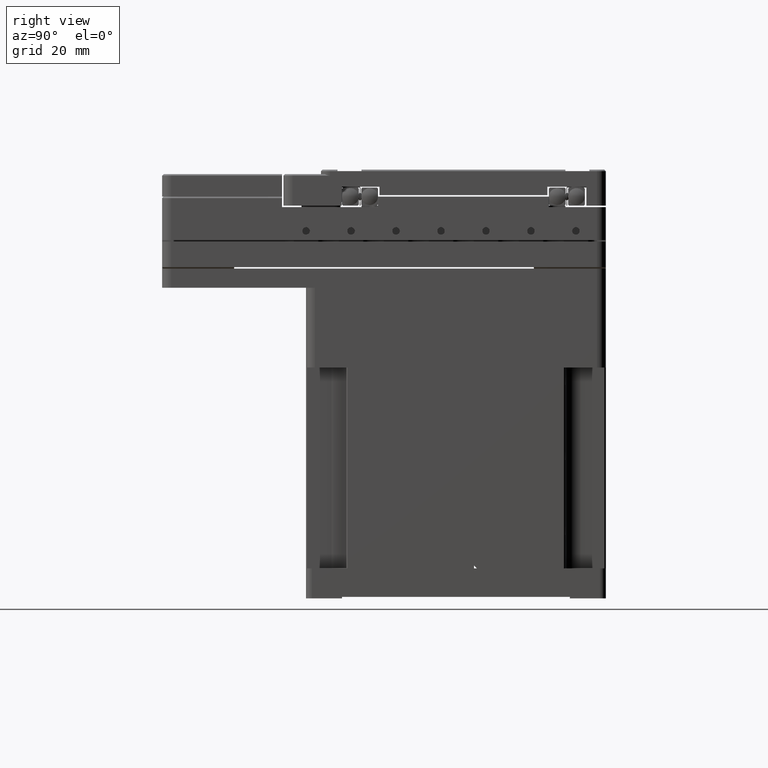
[diagram: clean part render]
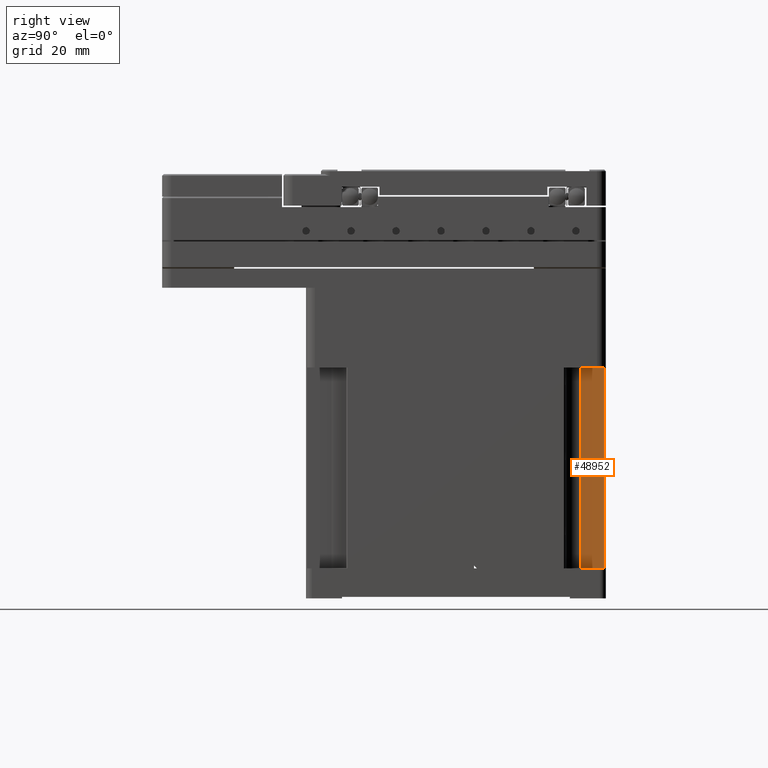
[diagram: same view with one face highlighted and labeled with its STEP entity id]
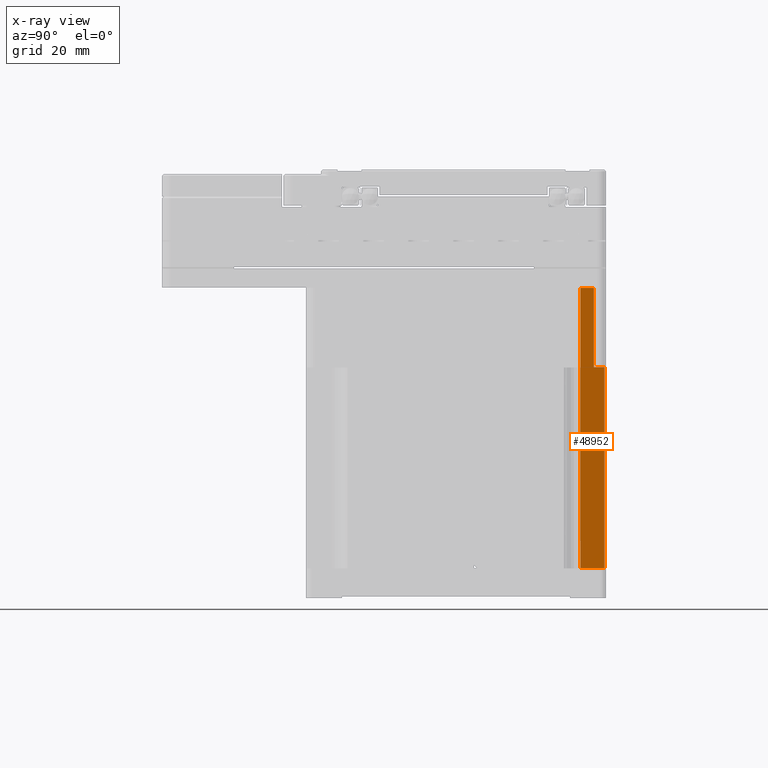
[diagram: x-ray of the same camera — body ghosted, the highlighted face saturated]
A machine part, right view. The second image highlights one B-rep face of the part: STEP entity #48952.
The next image is the same camera in x-ray: the body ghosted, the highlighted face saturated — about 0% of this face is hidden behind the body in this view.
In plain terms, the highlighted planar face has unit normal (-1, 0, 0).
Its self-contained STEP definition (entity closure, byte-faithful):
#601 = EDGE_CURVE ( 'NONE', #5150, #62597, #57172, .T. ) ;
#3567 = CARTESIAN_POINT ( 'NONE',  ( 36.49999999999999289, 46.00000000000000000, 202.7520022699813182 ) ) ;
#5150 = VERTEX_POINT ( 'NONE', #78508 ) ;
#5713 = LINE ( 'NONE', #56951, #57765 ) ;
#9070 = VERTEX_POINT ( 'NONE', #19261 ) ;
#10913 = DIRECTION ( 'NONE',  ( 0.000000000000000000, 0.000000000000000000, 1.000000000000000000 ) ) ;
#12698 = CARTESIAN_POINT ( 'NONE',  ( 36.49999999999999289, 49.50000000000000711, 66.99999999999988631 ) ) ;
#15832 = CARTESIAN_POINT ( 'NONE',  ( 36.49999999999999289, 0.000000000000000000, 67.00000000000000000 ) ) ;
#16410 = LINE ( 'NONE', #23481, #55803 ) ;
#17104 = ORIENTED_EDGE ( 'NONE', *, *, #55944, .F. ) ;
#17217 = DIRECTION ( 'NONE',  ( -0.000000000000000000, -1.000000000000000000, -0.000000000000000000 ) ) ;
#18878 = VERTEX_POINT ( 'NONE', #61968 ) ;
#19261 = CARTESIAN_POINT ( 'NONE',  ( 36.49999999999999289, 41.50000000000000711, 0.000000000000000000 ) ) ;
#21328 = VERTEX_POINT ( 'NONE', #38408 ) ;
#21857 = LINE ( 'NONE', #35948, #76413 ) ;
#23481 = CARTESIAN_POINT ( 'NONE',  ( 36.49999999999999289, 36.50000000000001421, 93.50000000000000000 ) ) ;
#23588 = VECTOR ( 'NONE', #45432, 1000.000000000000000 ) ;
#24016 = ORIENTED_EDGE ( 'NONE', *, *, #40272, .T. ) ;
#24431 = EDGE_CURVE ( 'NONE', #9070, #70181, #5713, .T. ) ;
#35948 = CARTESIAN_POINT ( 'NONE',  ( 36.49999999999999289, 0.000000000000000000, 0.000000000000000000 ) ) ;
#36005 = CARTESIAN_POINT ( 'NONE',  ( 36.49999999999999289, 49.50000000000000711, 202.7520022699813182 ) ) ;
#36208 = VECTOR ( 'NONE', #64228, 1000.000000000000000 ) ;
#36420 = DIRECTION ( 'NONE',  ( -0.000000000000000000, 1.000000000000000000, 0.000000000000000000 ) ) ;
#38408 = CARTESIAN_POINT ( 'NONE',  ( 36.49999999999999289, 46.00000000000000000, 66.99999999999997158 ) ) ;
#38836 = LINE ( 'NONE', #3567, #23588 ) ;
#39585 = ORIENTED_EDGE ( 'NONE', *, *, #601, .T. ) ;
#40102 = EDGE_CURVE ( 'NONE', #62597, #21328, #81670, .T. ) ;
#40272 = EDGE_CURVE ( 'NONE', #9070, #5150, #21857, .T. ) ;
#42664 = AXIS2_PLACEMENT_3D ( 'NONE', #47140, #82406, #10913 ) ;
#45432 = DIRECTION ( 'NONE',  ( -0.000000000000000000, -0.000000000000000000, -1.000000000000000000 ) ) ;
#47140 = CARTESIAN_POINT ( 'NONE',  ( 36.49999999999999289, 36.50000000000001421, 202.7520022699813182 ) ) ;
#47607 = FACE_OUTER_BOUND ( 'NONE', #79143, .T. ) ;
#48952 = ADVANCED_FACE ( 'NONE', ( #47607 ), #75358, .F. ) ;
#55803 = VECTOR ( 'NONE', #60966, 1000.000000000000000 ) ;
#55944 = EDGE_CURVE ( 'NONE', #18878, #21328, #38836, .T. ) ;
#56951 = CARTESIAN_POINT ( 'NONE',  ( 36.49999999999999289, 41.50000000000000711, 202.7520022699813182 ) ) ;
#57172 = LINE ( 'NONE', #36005, #36208 ) ;
#57765 = VECTOR ( 'NONE', #78127, 1000.000000000000000 ) ;
#60966 = DIRECTION ( 'NONE',  ( 0.000000000000000000, 1.000000000000000000, -0.000000000000000000 ) ) ;
#61968 = CARTESIAN_POINT ( 'NONE',  ( 36.49999999999999289, 46.00000000000000711, 93.49999999999998579 ) ) ;
#62597 = VERTEX_POINT ( 'NONE', #12698 ) ;
#64228 = DIRECTION ( 'NONE',  ( -0.000000000000000000, 0.000000000000000000, 1.000000000000000000 ) ) ;
#64291 = ORIENTED_EDGE ( 'NONE', *, *, #40102, .T. ) ;
#67077 = CARTESIAN_POINT ( 'NONE',  ( 36.49999999999999289, 41.50000000000000711, 93.50000000000000000 ) ) ;
#70181 = VERTEX_POINT ( 'NONE', #67077 ) ;
#73325 = VECTOR ( 'NONE', #17217, 1000.000000000000000 ) ;
#75358 = PLANE ( 'NONE',  #42664 ) ;
#76413 = VECTOR ( 'NONE', #36420, 1000.000000000000000 ) ;
#78127 = DIRECTION ( 'NONE',  ( 0.000000000000000000, 0.000000000000000000, 1.000000000000000000 ) ) ;
#78508 = CARTESIAN_POINT ( 'NONE',  ( 36.49999999999998579, 49.50000000000002132, -3.700743415417188258E-14 ) ) ;
#79143 = EDGE_LOOP ( 'NONE', ( #17104, #90174, #91780, #24016, #39585, #64291 ) ) ;
#81670 = LINE ( 'NONE', #15832, #73325 ) ;
#82406 = DIRECTION ( 'NONE',  ( -1.000000000000000000, 0.000000000000000000, 0.000000000000000000 ) ) ;
#90174 = ORIENTED_EDGE ( 'NONE', *, *, #92774, .F. ) ;
#91780 = ORIENTED_EDGE ( 'NONE', *, *, #24431, .F. ) ;
#92774 = EDGE_CURVE ( 'NONE', #70181, #18878, #16410, .T. ) ;